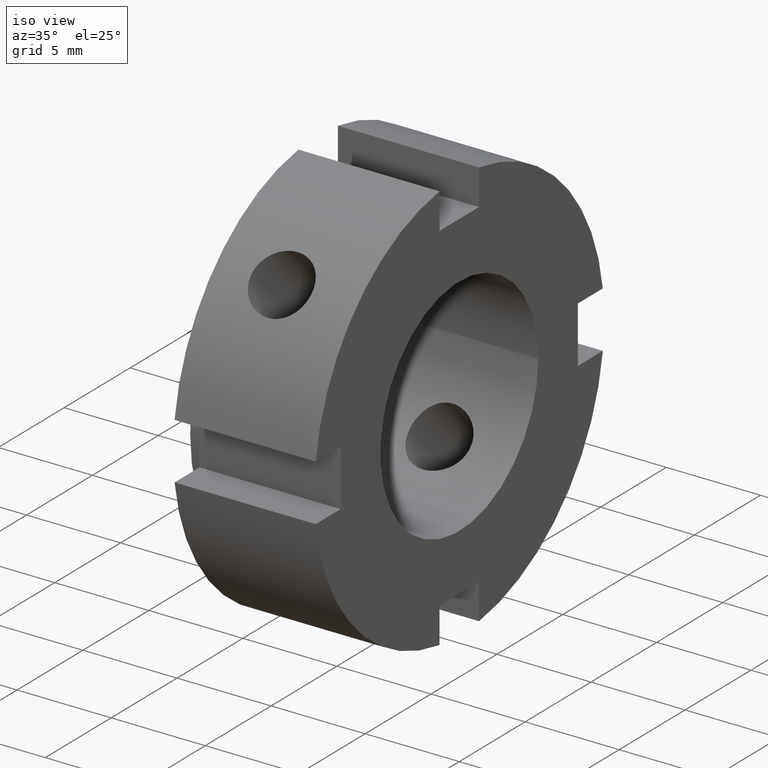
[diagram: clean part render]
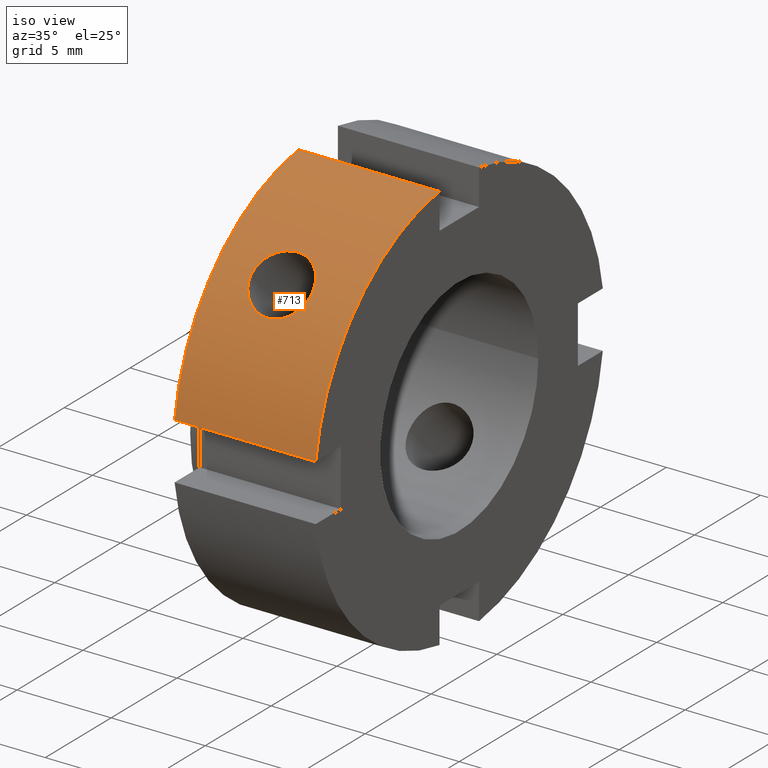
[diagram: same view with one face highlighted and labeled with its STEP entity id]
A machine part, iso view. The second image highlights one B-rep face of the part: STEP entity #713.
In plain terms, the highlighted cylindrical surface (partial cylindrical patch) has radius 11 mm, axis along (1, 0, 0).
Its self-contained STEP definition (entity closure, byte-faithful):
#73=CARTESIAN_POINT('',(3.999999999999997,-8.839475547570686,6.547035362963900));
#74=VERTEX_POINT('',#73);
#75=CARTESIAN_POINT('',(3.999999999999997,-8.839475547570686,6.547035362963900));
#76=CARTESIAN_POINT('',(3.796142769904900,-8.839475547570686,6.547035362963900));
#77=CARTESIAN_POINT('',(3.578903577574677,-8.815094253102171,6.580356519688689));
#78=CARTESIAN_POINT('',(3.179612484980892,-8.714136118925408,6.713479742443687));
#79=CARTESIAN_POINT('',(2.997534770452102,-8.637331490035944,6.813031413470040));
#80=CARTESIAN_POINT('',(2.710027378099478,-8.455333084321632,7.037629861303332));
#81=CARTESIAN_POINT('',(2.585322812457487,-8.337903377266315,7.177698352393069));
#82=CARTESIAN_POINT('',(2.419800965029881,-8.071517897913950,7.476000614545657));
#83=CARTESIAN_POINT('',(2.378999999999997,-7.922321083293664,7.634028102810378));
#84=CARTESIAN_POINT('',(2.378999999999997,-7.634028102810375,7.922321083293664));
#85=CARTESIAN_POINT('',(2.419800965029881,-7.476000614545653,8.071517897913953));
#86=CARTESIAN_POINT('',(2.585322812457488,-7.177698352393065,8.337903377266319));
#87=CARTESIAN_POINT('',(2.710027378099478,-7.037629861303331,8.455333084321634));
#88=CARTESIAN_POINT('',(2.997534770452102,-6.813031413470039,8.637331490035948));
#89=CARTESIAN_POINT('',(3.179612484980891,-6.713479742443685,8.714136118925412));
#90=CARTESIAN_POINT('',(3.578903577574677,-6.580356519688686,8.815094253102174));
#91=CARTESIAN_POINT('',(3.796142769904900,-6.547035362963899,8.839475547570688));
#92=CARTESIAN_POINT('',(4.203857230095094,-6.547035362963899,8.839475547570688));
#93=CARTESIAN_POINT('',(4.421096422425318,-6.580356519688686,8.815094253102174));
#94=CARTESIAN_POINT('',(4.820387515019104,-6.713479742443685,8.714136118925412));
#95=CARTESIAN_POINT('',(5.002465229547894,-6.813031413470039,8.637331490035948));
#96=CARTESIAN_POINT('',(5.289972621900516,-7.037629861303331,8.455333084321634));
#97=CARTESIAN_POINT('',(5.414677187542507,-7.177698352393066,8.337903377266319));
#98=CARTESIAN_POINT('',(5.580199034970114,-7.476000614545654,8.071517897913953));
#99=CARTESIAN_POINT('',(5.620999999999997,-7.634028102810375,7.922321083293664));
#100=CARTESIAN_POINT('',(5.620999999999997,-7.922321083293664,7.634028102810378));
#101=CARTESIAN_POINT('',(5.580199034970113,-8.071517897913951,7.476000614545656));
#102=CARTESIAN_POINT('',(5.414677187542508,-8.337903377266315,7.177698352393069));
#103=CARTESIAN_POINT('',(5.289972621900516,-8.455333084321632,7.037629861303332));
#104=CARTESIAN_POINT('',(5.002465229547893,-8.637331490035944,6.813031413470041));
#105=CARTESIAN_POINT('',(4.820387515019103,-8.714136118925408,6.713479742443687));
#106=CARTESIAN_POINT('',(4.421096422425317,-8.815094253102171,6.580356519688689));
#107=CARTESIAN_POINT('',(4.203857230095094,-8.839475547570686,6.547035362963900));
#108=CARTESIAN_POINT('',(3.999999999999997,-8.839475547570686,6.547035362963900));
#109=B_SPLINE_CURVE_WITH_KNOTS('',3,(#75,#76,#77,#78,#79,#80,#81,#82,#83,#84,#85,#86,#87,#88,#89,#90,#91,#92,#93,#94,#95,#96,#97,#98,#99,#100,#101,#102,#103,#104,#105,#106,#107,#108),.UNSPECIFIED.,.T.,.U.,(4,2,2,2,2,2,2,2,2,2,2,2,2,2,2,2,4),(0.0,0.061157169028529,0.122314338057058,0.183470514497522,0.244626690937986,0.305782867378450,0.366939043818914,0.428096212847443,0.489253381875972,0.550410550904501,0.611567719933030,0.672723896373494,0.733880072813958,0.795036249254422,0.856192425694887,0.917349594723415,0.978506763751944),.UNSPECIFIED.);
#110=EDGE_CURVE('',#74,#74,#109,.T.);
#361=CARTESIAN_POINT('',(0.499999999999998,-10.897247358851681,1.500000000000001));
#362=VERTEX_POINT('',#361);
#377=CARTESIAN_POINT('',(7.999999999999998,-10.897247358851681,1.500000000000001));
#378=VERTEX_POINT('',#377);
#385=CARTESIAN_POINT('',(0.499999999999998,-10.897247358851681,1.500000000000001));
#386=DIRECTION('',(1.0,0.0,0.0));
#387=VECTOR('',#386,7.500000000000000);
#388=LINE('',#385,#387);
#389=EDGE_CURVE('',#362,#378,#388,.T.);
#509=CARTESIAN_POINT('',(0.499999999999998,-1.500000000000000,10.897247358851681));
#510=VERTEX_POINT('',#509);
#519=CARTESIAN_POINT('',(7.999999999999998,-1.499999999999999,10.897247358851681));
#520=VERTEX_POINT('',#519);
#521=CARTESIAN_POINT('',(7.999999999999998,-1.499999999999999,10.897247358851681));
#522=DIRECTION('',(-1.0,0.0,0.0));
#523=VECTOR('',#522,7.500000000000000);
#524=LINE('',#521,#523);
#525=EDGE_CURVE('',#520,#510,#524,.T.);
#623=CARTESIAN_POINT('',(0.499999999999998,0.0,0.0));
#624=DIRECTION('',(1.0,0.0,0.0));
#625=DIRECTION('',(0.0,1.0,0.0));
#626=AXIS2_PLACEMENT_3D('',#623,#624,#625);
#627=CIRCLE('',#626,10.999999999999996);
#628=EDGE_CURVE('',#510,#362,#627,.T.);
#693=CARTESIAN_POINT('',(4.249999999999998,0.0,0.0));
#694=DIRECTION('',(1.0,0.0,0.0));
#695=DIRECTION('',(0.0,1.0,0.0));
#696=AXIS2_PLACEMENT_3D('',#693,#694,#695);
#697=CYLINDRICAL_SURFACE('',#696,10.999999999999996);
#698=ORIENTED_EDGE('',*,*,#389,.T.);
#699=CARTESIAN_POINT('',(7.999999999999998,0.0,0.0));
#700=DIRECTION('',(1.0,0.0,0.0));
#701=DIRECTION('',(0.0,1.0,0.0));
#702=AXIS2_PLACEMENT_3D('',#699,#700,#701);
#703=CIRCLE('',#702,10.999999999999996);
#704=EDGE_CURVE('',#520,#378,#703,.T.);
#705=ORIENTED_EDGE('',*,*,#704,.F.);
#706=ORIENTED_EDGE('',*,*,#525,.T.);
#707=ORIENTED_EDGE('',*,*,#628,.T.);
#708=EDGE_LOOP('',(#698,#705,#706,#707));
#709=FACE_OUTER_BOUND('',#708,.T.);
#710=ORIENTED_EDGE('',*,*,#110,.T.);
#711=EDGE_LOOP('',(#710));
#712=FACE_BOUND('',#711,.T.);
#713=ADVANCED_FACE('',(#709,#712),#697,.T.);